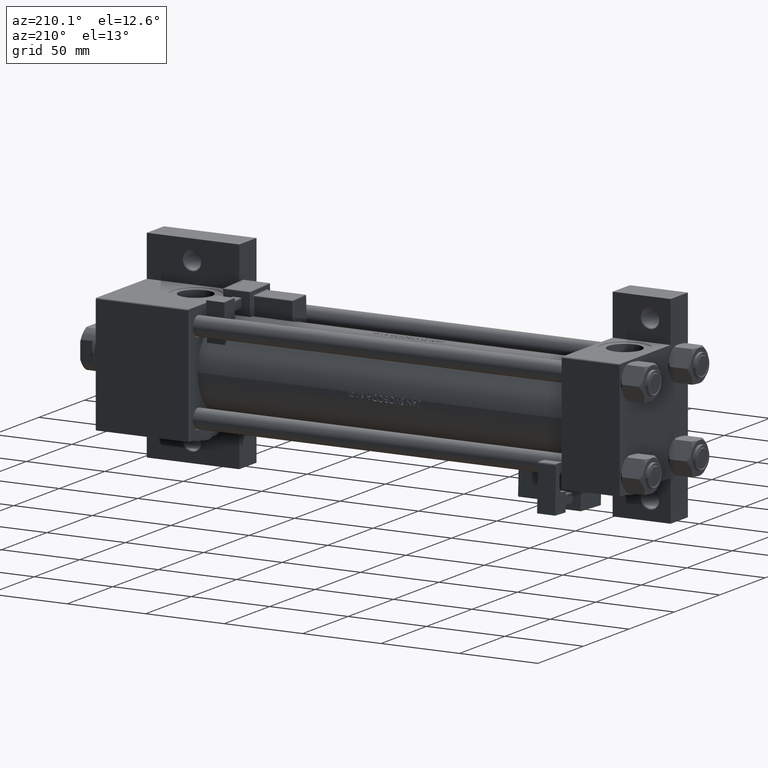
[diagram: clean part render]
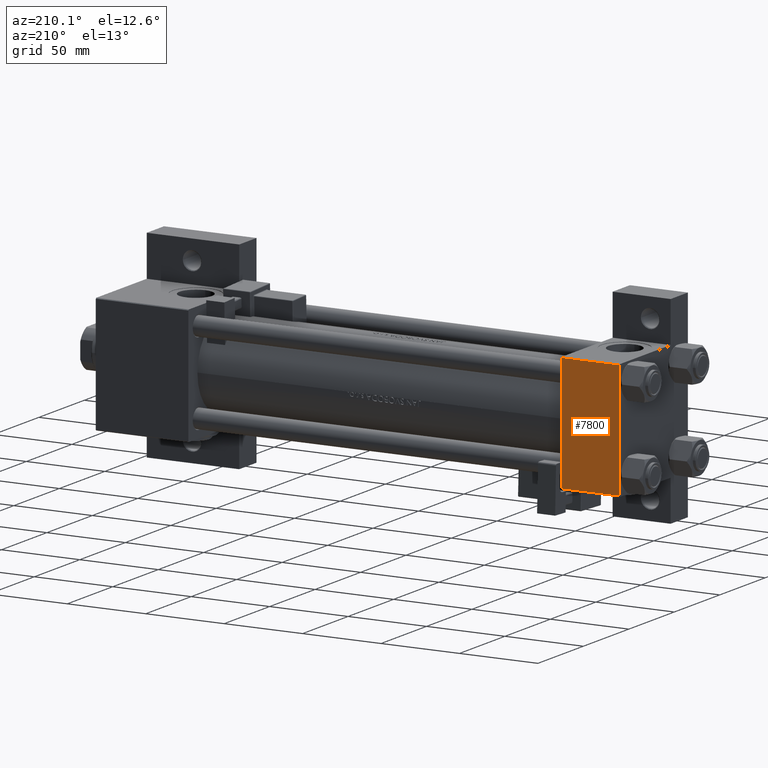
[diagram: same view with one face highlighted and labeled with its STEP entity id]
A machine part, auxiliary view. The second image highlights one B-rep face of the part: STEP entity #7800.
In plain terms, the highlighted planar face has unit normal (0, -1, -0).
Its self-contained STEP definition (entity closure, byte-faithful):
#223 = DIRECTION ( 'NONE',  ( 1.000000000000000000, 0.000000000000000000, 0.000000000000000000 ) ) ;
#1247 = EDGE_CURVE ( 'NONE', #21473, #4800, #37762, .T. ) ;
#2594 = VECTOR ( 'NONE', #49584, 1000.000000000000000 ) ;
#3080 = CARTESIAN_POINT ( 'NONE',  ( 0.000000000000000000, 37.49999999999999289, 37.50000000000000000 ) ) ;
#4569 = DIRECTION ( 'NONE',  ( 0.000000000000000000, -1.000000000000000000, -9.251858538542971581E-17 ) ) ;
#4800 = VERTEX_POINT ( 'NONE', #51524 ) ;
#5384 = AXIS2_PLACEMENT_3D ( 'NONE', #7397, #39822, #19144 ) ;
#7146 = PLANE ( 'NONE',  #5384 ) ;
#7397 = CARTESIAN_POINT ( 'NONE',  ( 37.00000000000000000, 37.49999999999999289, 37.50000000000000000 ) ) ;
#7800 = ADVANCED_FACE ( 'NONE', ( #43246 ), #7146, .F. ) ;
#8747 = LINE ( 'NONE', #49072, #22931 ) ;
#10566 = VERTEX_POINT ( 'NONE', #51231 ) ;
#11025 = ORIENTED_EDGE ( 'NONE', *, *, #1247, .T. ) ;
#11183 = EDGE_LOOP ( 'NONE', ( #23539, #44492, #15661, #11025 ) ) ;
#11431 = DIRECTION ( 'NONE',  ( 0.000000000000000000, -1.000000000000000000, -9.251858538542971581E-17 ) ) ;
#12493 = CARTESIAN_POINT ( 'NONE',  ( 37.00000000000000000, -37.00000000000000711, 37.49999999999999289 ) ) ;
#15661 = ORIENTED_EDGE ( 'NONE', *, *, #32652, .F. ) ;
#17494 = CARTESIAN_POINT ( 'NONE',  ( 37.00000000000000000, 36.99999999999999289, 37.50000000000000000 ) ) ;
#19012 = LINE ( 'NONE', #3080, #29098 ) ;
#19144 = DIRECTION ( 'NONE',  ( 0.000000000000000000, 1.000000000000000000, 9.251858538542971581E-17 ) ) ;
#20092 = LINE ( 'NONE', #12493, #32658 ) ;
#21473 = VERTEX_POINT ( 'NONE', #17494 ) ;
#22931 = VECTOR ( 'NONE', #4569, 1000.000000000000000 ) ;
#23539 = ORIENTED_EDGE ( 'NONE', *, *, #41673, .T. ) ;
#25634 = EDGE_CURVE ( 'NONE', #10566, #46647, #20092, .T. ) ;
#29098 = VECTOR ( 'NONE', #11431, 1000.000000000000000 ) ;
#32652 = EDGE_CURVE ( 'NONE', #21473, #46647, #8747, .T. ) ;
#32658 = VECTOR ( 'NONE', #223, 1000.000000000000000 ) ;
#33551 = CARTESIAN_POINT ( 'NONE',  ( 0.000000000000000000, 36.99999999999999289, 37.50000000000000000 ) ) ;
#37344 = CARTESIAN_POINT ( 'NONE',  ( 37.00000000000000000, -37.00000000000000711, 37.49999999999999289 ) ) ;
#37762 = LINE ( 'NONE', #33551, #2594 ) ;
#39822 = DIRECTION ( 'NONE',  ( 0.000000000000000000, 9.251858538542971581E-17, -1.000000000000000000 ) ) ;
#41673 = EDGE_CURVE ( 'NONE', #4800, #10566, #19012, .T. ) ;
#43246 = FACE_OUTER_BOUND ( 'NONE', #11183, .T. ) ;
#44492 = ORIENTED_EDGE ( 'NONE', *, *, #25634, .T. ) ;
#46647 = VERTEX_POINT ( 'NONE', #37344 ) ;
#49072 = CARTESIAN_POINT ( 'NONE',  ( 37.00000000000000000, 37.49999999999999289, 37.50000000000000000 ) ) ;
#49584 = DIRECTION ( 'NONE',  ( -1.000000000000000000, 0.000000000000000000, 0.000000000000000000 ) ) ;
#51231 = CARTESIAN_POINT ( 'NONE',  ( 0.000000000000000000, -37.00000000000000711, 37.49999999999999289 ) ) ;
#51524 = CARTESIAN_POINT ( 'NONE',  ( 0.000000000000000000, 36.99999999999999289, 37.50000000000000000 ) ) ;